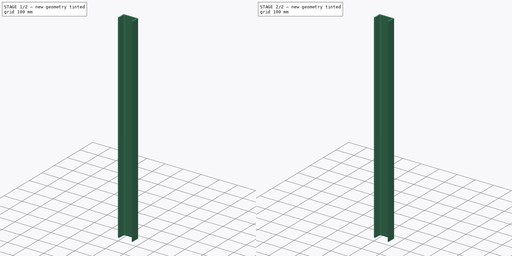
[diagram: build sequence overview — one tinted view per stage of 2, left to right]
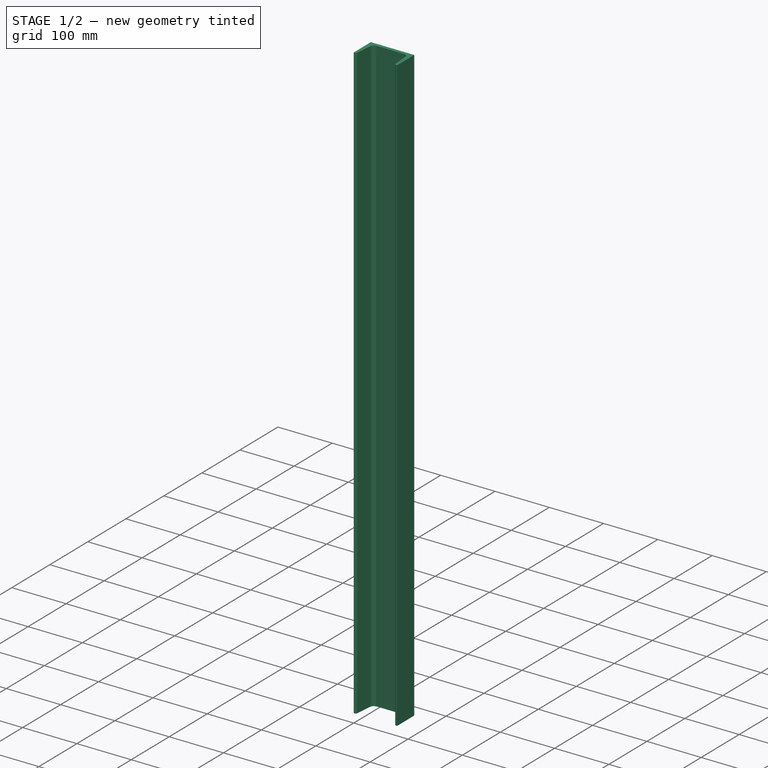
[diagram: stage 1 of 2 — iso view after this stage's code; geometry added in this stage tinted green]
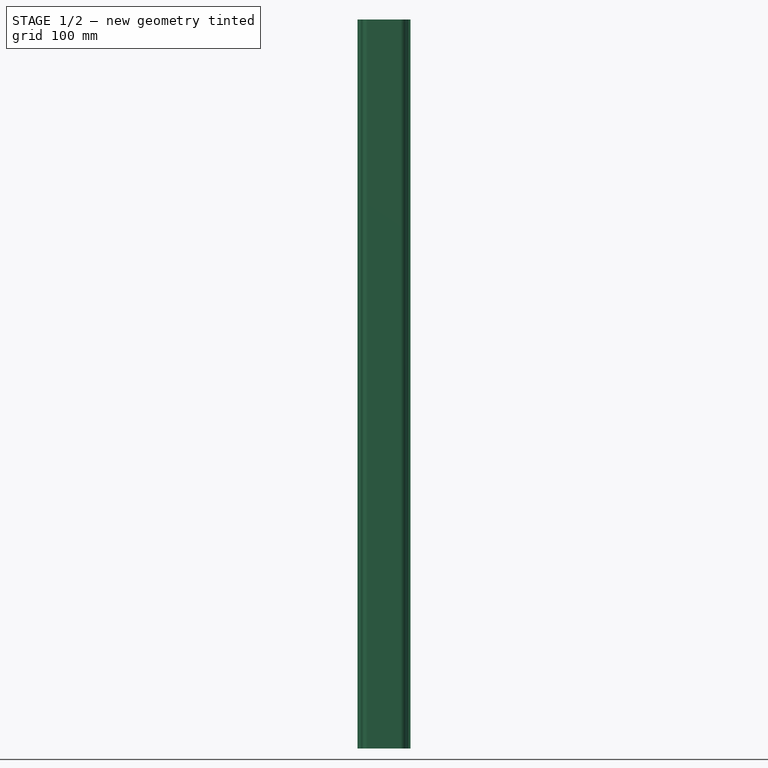
[diagram: stage 1 of 2 — front view after this stage's code; geometry added in this stage tinted green]
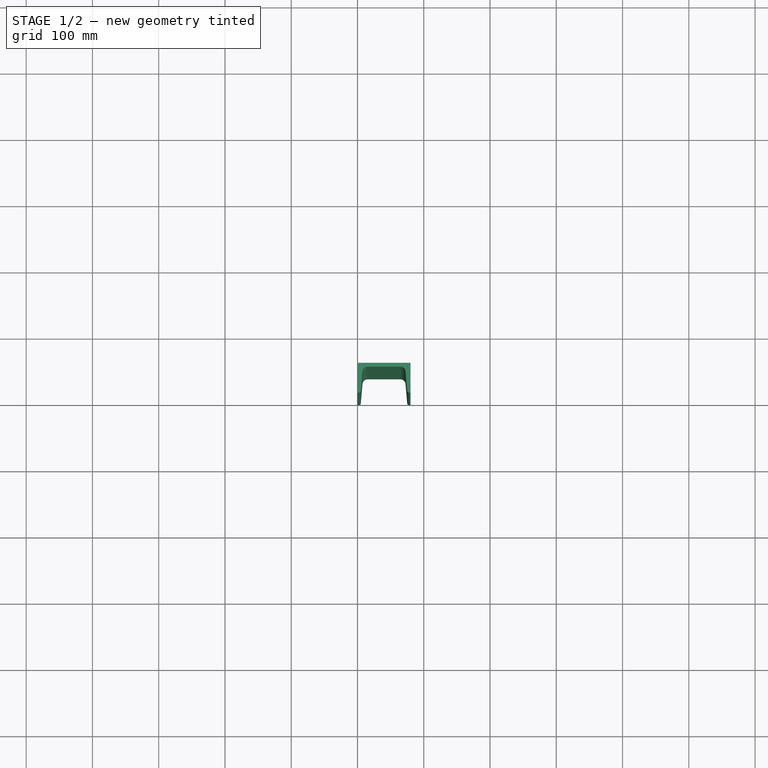
[diagram: stage 1 of 2 — top view after this stage's code; geometry added in this stage tinted green]
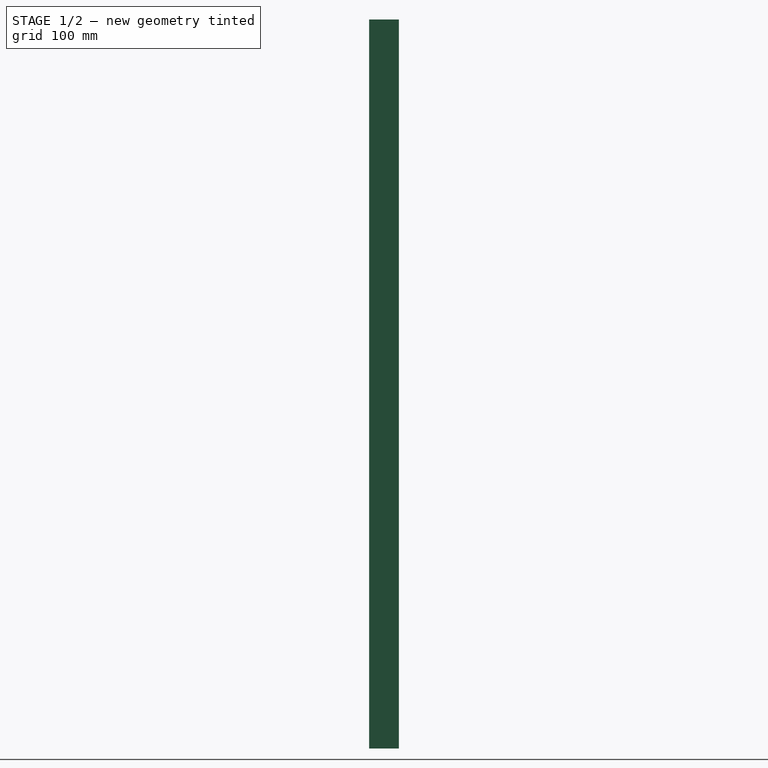
[diagram: stage 1 of 2 — right view after this stage's code; geometry added in this stage tinted green]
FCSTD DOCUMENT  (FreeCAD 0.21R33771 (Git))
Label: Profilo-C-basamento
License: All rights reserved
LicenseURL: http://en.wikipedia.org/wiki/All_rights_reserved
objects: Sketcher::SketchObject×2, PartDesign::Pad×1, PartDesign::CoordinateSystem×1, PartDesign::Pocket×1, PartDesign::Body×1
note: 8 computed .brp shape members not serialized (recipe doc carries the construction recipe); baked Part::Feature solids carry a one-line shape summary decoded from their .brp

FEATURE [Sketcher::SketchObject] Sketch
  FullyConstrained = true
  MapMode = 5
  Support = -> [XY_Plane]
  sketch-geometry (12):
    g0: LineSegment StartX=0 StartY=0 StartZ=0 EndX=0 EndY=45 EndZ=0
    g1: LineSegment StartX=0 StartY=45 StartZ=0 EndX=80 EndY=45 EndZ=0
    g2: LineSegment StartX=80 StartY=45 StartZ=0 EndX=80 EndY=0 EndZ=0
    g3: LineSegment StartX=80 StartY=0 StartZ=0 EndX=78 EndY=0 EndZ=0
    g4: LineSegment StartX=75.0114 StartY=2.73853 StartZ=0 EndX=72.4379 EndY=32.1537 EndZ=0
    g5: LineSegment StartX=0 StartY=0 StartZ=0 EndX=2 EndY=0 EndZ=0
    g6: LineSegment StartX=4.98858 StartY=2.73853 StartZ=0 EndX=7.56207 EndY=32.1537 EndZ=0
    g7: LineSegment StartX=64.9665 StartY=39 StartZ=0 EndX=15.0335 EndY=39 EndZ=0
    g8: ArcOfCircle CenterX=64.9665 CenterY=31.5 CenterZ=0 NormalX=0 NormalY=0 NormalZ=1 AngleXU=0 Radius=7.5 StartAngle=0.0872665 EndAngle=1.5708
    g9: ArcOfCircle CenterX=15.0335 CenterY=31.5 CenterZ=0 NormalX=0 NormalY=0 NormalZ=1 AngleXU=0 Radius=7.5 StartAngle=1.5708 EndAngle=3.05433
    g10: ArcOfCircle CenterX=78 CenterY=3 CenterZ=0 NormalX=0 NormalY=0 NormalZ=1 AngleXU=0 Radius=3 StartAngle=3.22886 EndAngle=4.71239
    g11: ArcOfCircle CenterX=2 CenterY=3 CenterZ=0 NormalX=0 NormalY=0 NormalZ=1 AngleXU=0 Radius=3 StartAngle=4.71239 EndAngle=6.19592
  constraints (31):
    c: Coincident(g0,g-1)
    c: PointOnObject(g0,g-2)
    c: Coincident(g1,g0)
    c: Horizontal(g1)
    c: Coincident(g2,g1)
    c: PointOnObject(g2,g-1)
    c: Vertical(g2)
    c: Coincident(g3,g2)
    c: Coincident(g5,g0)
    c: Horizontal(g7)
    c: DistanceY(g0,g0) = 45
    c: DistanceX(g0,g1) = 80
    c: Angle(g6,g0) = 0.0872665
    c: Angle(g4,g-1) = 1.48353
    c: Equal(g5,g3)
    c: Tangent(g7,g8) = -1.5708
    c: Tangent(g4,g8) = -1.5708
    c: Tangent(g6,g9) = 1.5708
    c: Tangent(g7,g9) = -1.5708
    c: DistanceY(g7,g1) = 6
    c: Equal(g9,g8)
    c: Radius(g9) = 7.5
    c: Tangent(g4,g10) = 1.5708
    c: Tangent(g3,g10) = 1.5708
    c: Radius(g10) = 3
    c: Horizontal(g3)
    c: Tangent(g6,g11) = -1.5708
    c: Tangent(g5,g11) = -1.5708
    c: Equal(g11,g10)
    c: Horizontal(g5)
    c: DistanceX(g3,g3) = 2
FEATURE [PartDesign::Pad] Pad
  Direction = (0,0,1)
  Length = 1100
  Length2 = 10
  Profile = -> Sketch
  ReferenceAxis = -> Sketch [N_Axis]
  Type = 0
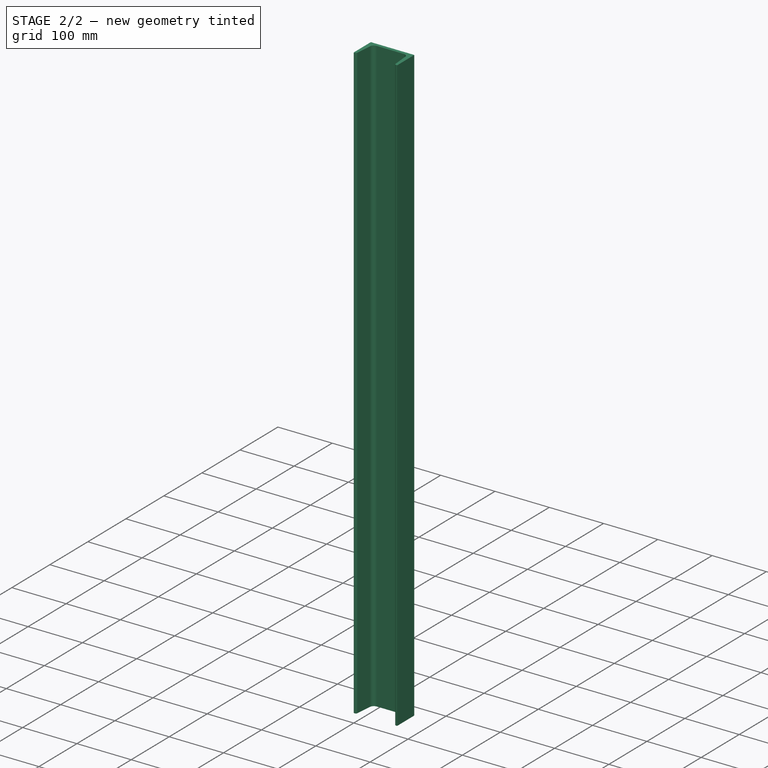
[diagram: stage 2 of 2 — iso view after this stage's code; geometry added in this stage tinted green]
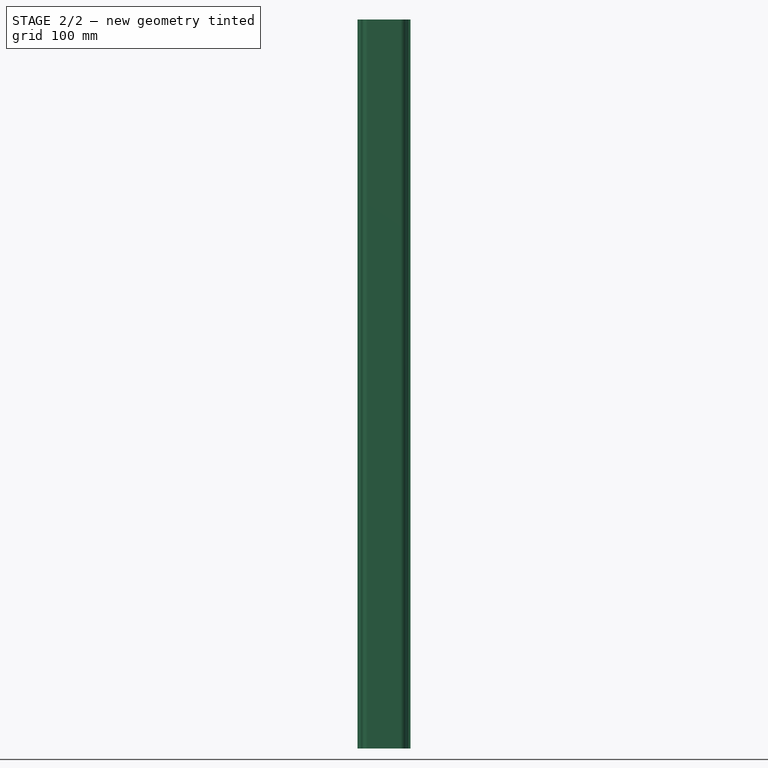
[diagram: stage 2 of 2 — front view after this stage's code; geometry added in this stage tinted green]
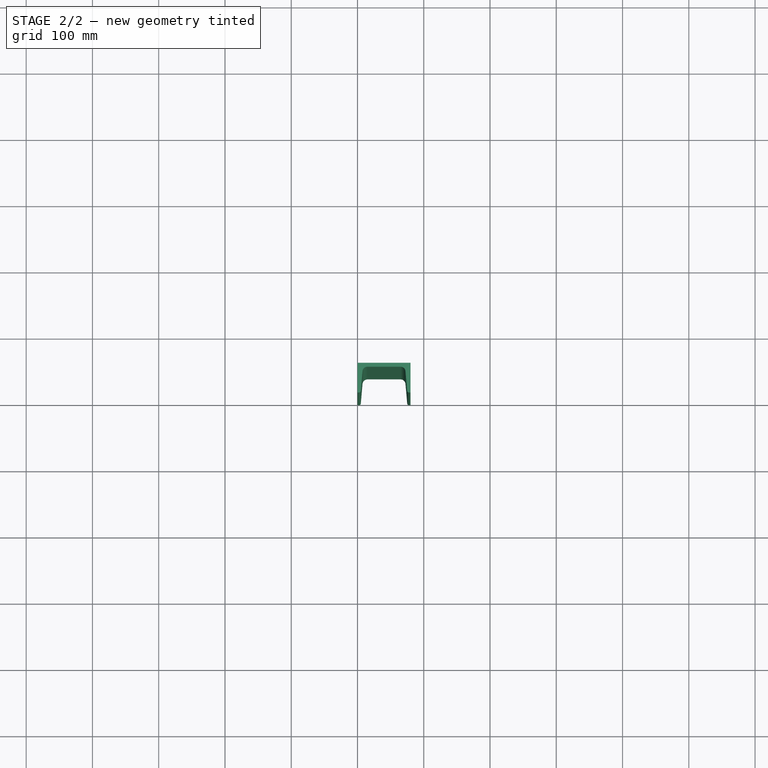
[diagram: stage 2 of 2 — top view after this stage's code; geometry added in this stage tinted green]
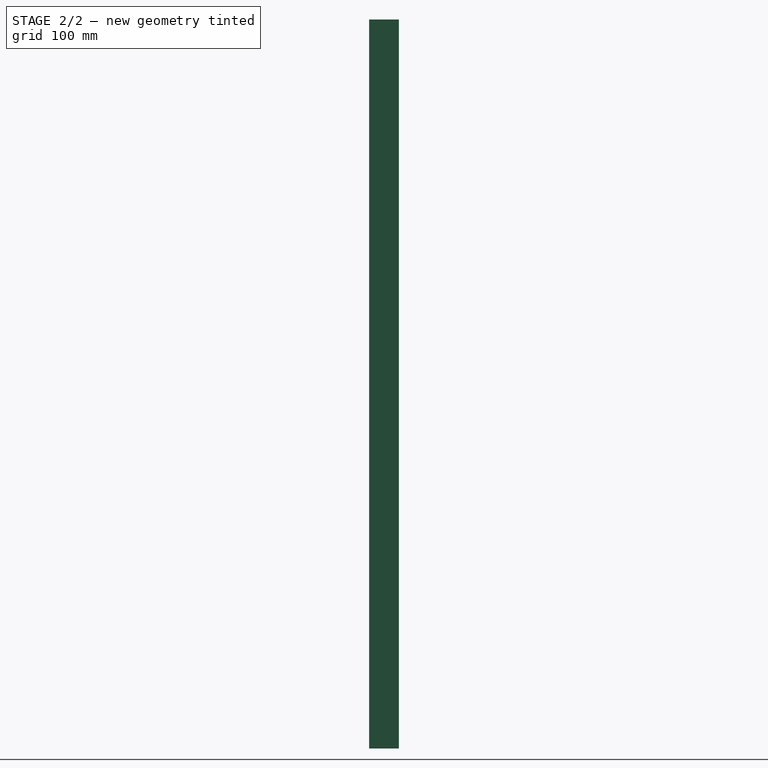
[diagram: stage 2 of 2 — right view after this stage's code; geometry added in this stage tinted green]
FEATURE [PartDesign::CoordinateSystem] LCS_ProfiloCbasamento
  AttacherType = Attacher::AttachEngine3D
FEATURE [Sketcher::SketchObject] Sketch001
  FullyConstrained = true
  MapMode = 5
  Placement = pos=(0,0,0) rot=(0.57735,-0.57735,-0.57735;2.0944rad)
  Support = -> [Pad]
  sketch-geometry (1):
    g0: Circle CenterX=-62 CenterY=1050 CenterZ=0 NormalX=0 NormalY=0 NormalZ=1 AngleXU=0 Radius=6
  constraints (3):
    c: Radius(g0) = 6
    c: DistanceY(g-1,g0) = 1050
    c: DistanceX(g0,g-1) = 62
FEATURE [PartDesign::Pocket] Pocket
  BaseFeature = -> Pad
  Direction = (1,0,0)
  Length = 5
  Length2 = 5
  Profile = -> Sketch001
  ReferenceAxis = -> Sketch001 [N_Axis]
  Type = 1
FEATURE [PartDesign::Body] Body  label="Corpo"
  Group = -> [Sketch,Pad,LCS_ProfiloCbasamento,Sketch001,Pocket]
  Origin = -> Origin
  Tip = -> Pocket
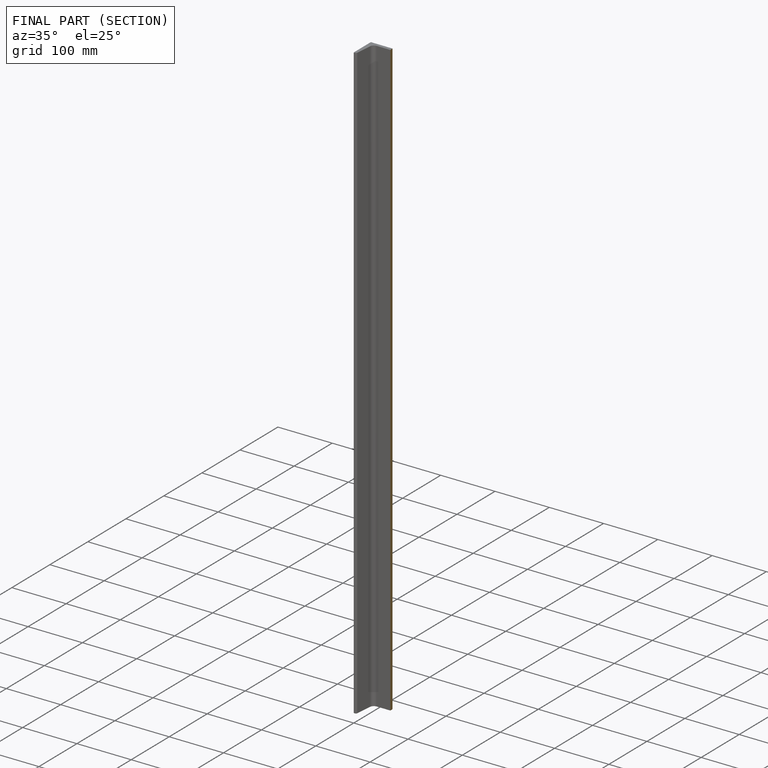
[diagram: finished part — half-section view (interior)]
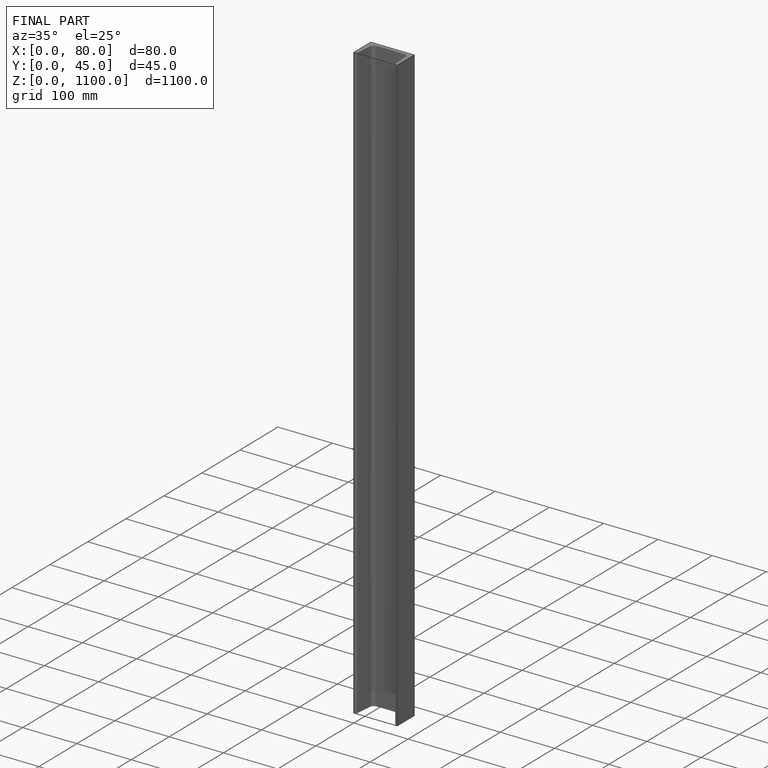
[diagram: finished part — iso view with bounding-box wireframe]
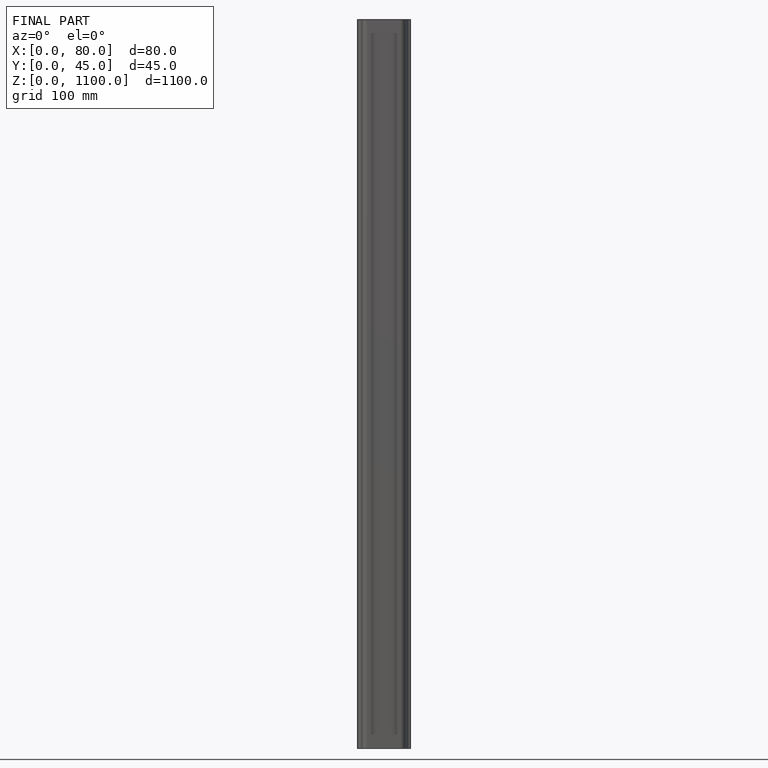
[diagram: finished part — front view with bounding-box wireframe]
